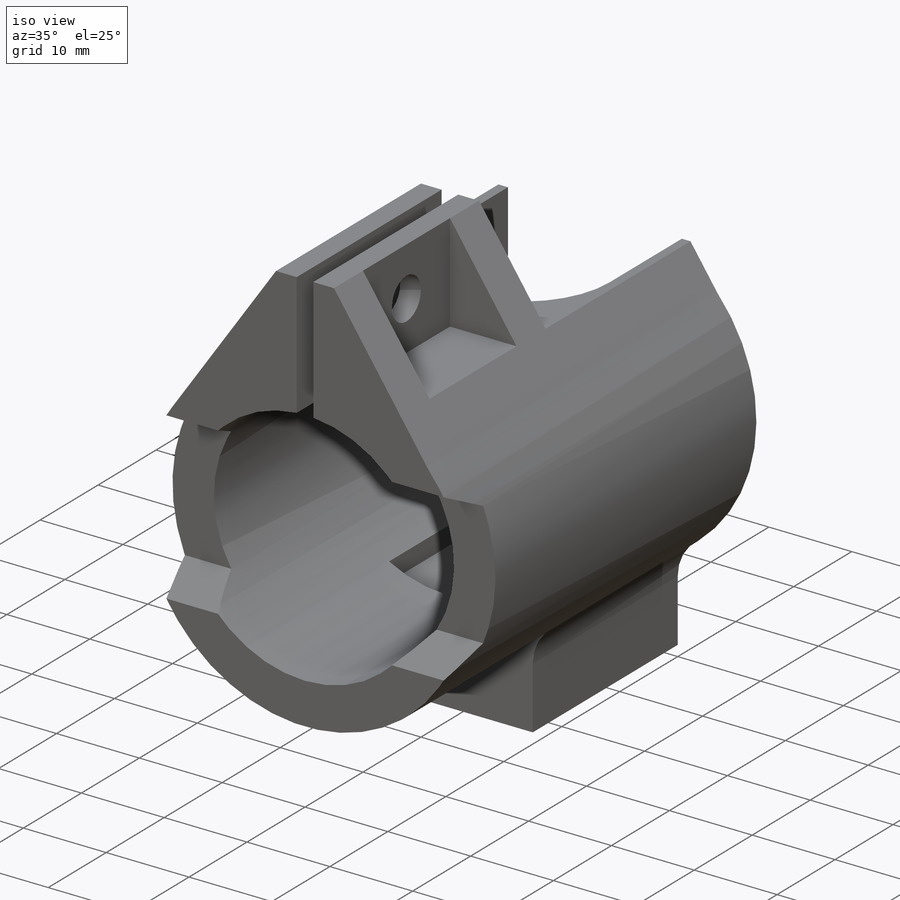
[diagram: iso view]
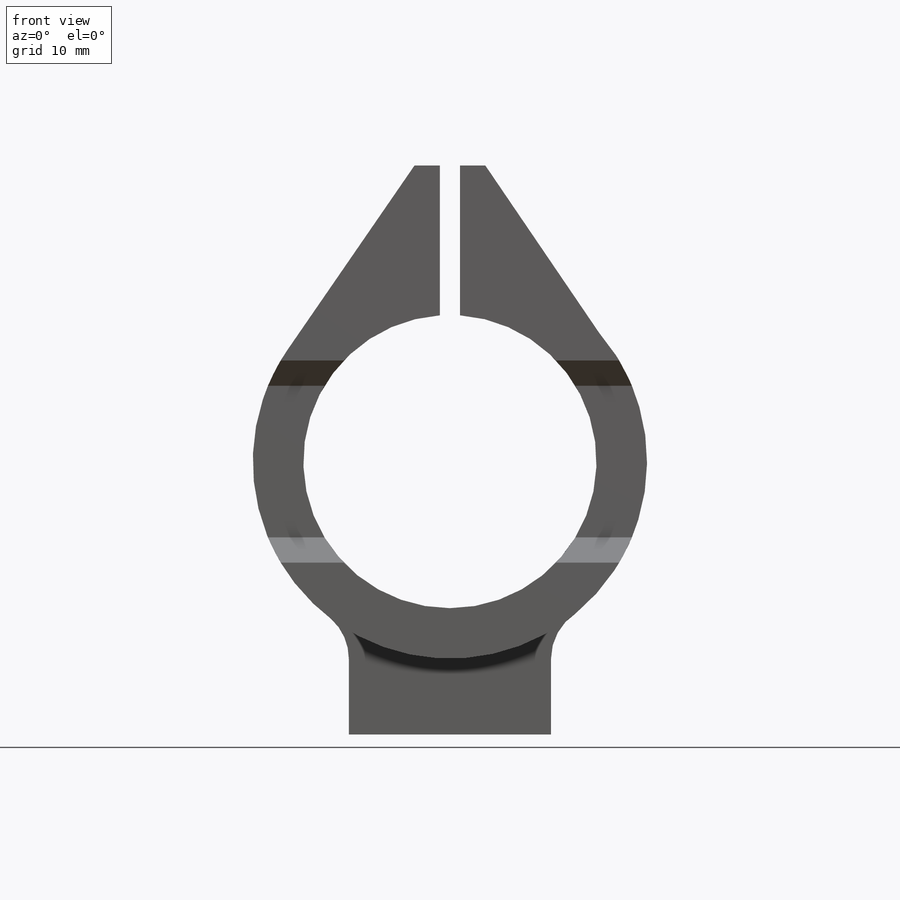
[diagram: front view]
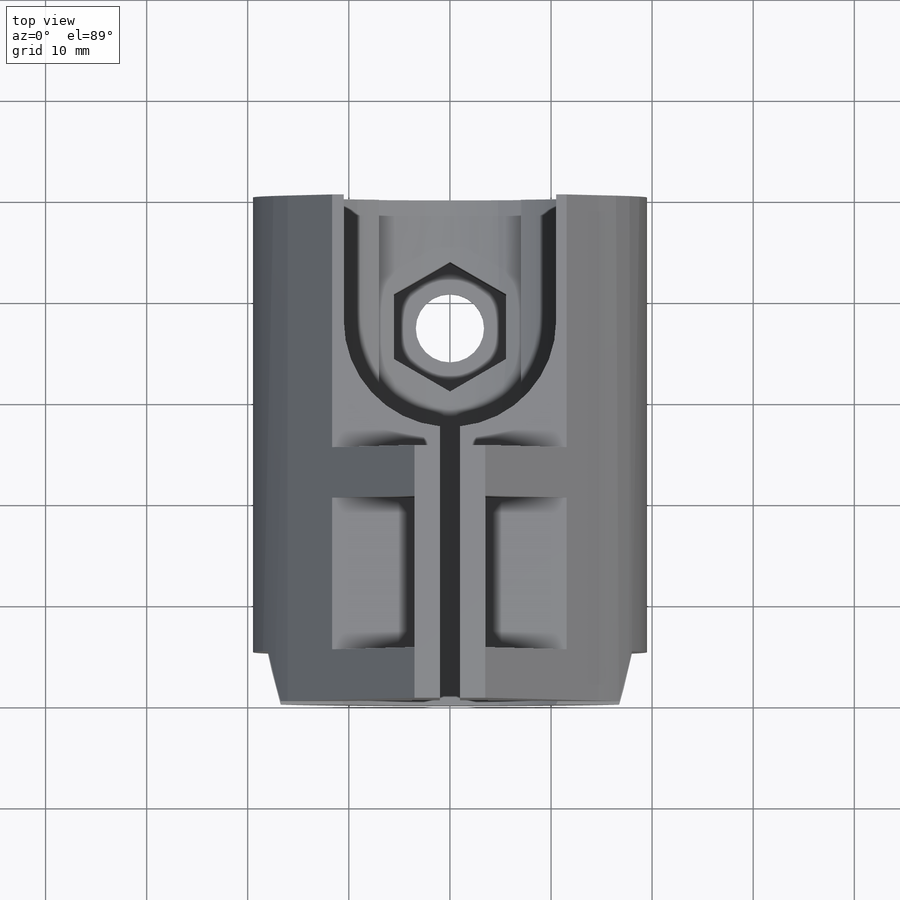
[diagram: top view]
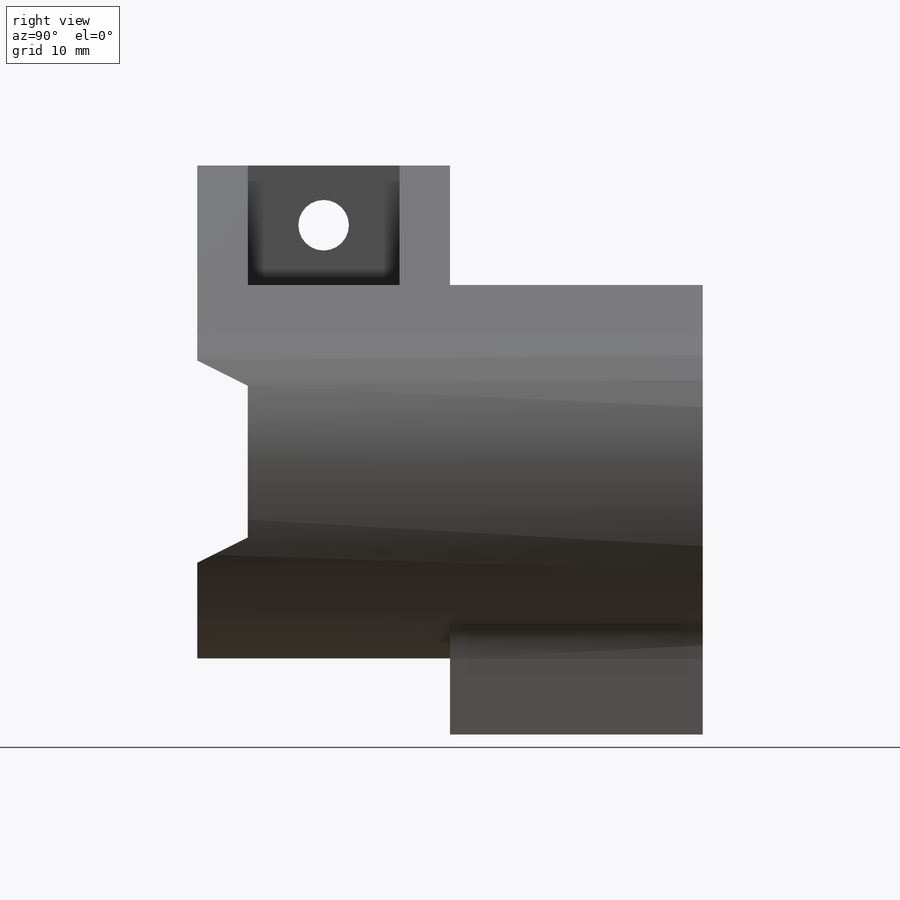
[diagram: right view]
SOLIDWORKS PART (.sldprt)
format: sldprt  version: not decoded by parser v0  size: 419,840 bytes
history: native  units: mm
features: sketch x11, cut_extrude x9, plane x4, extrude x2, material x1, mirror x1 (+12 scaffold rows collapsed)
feature tree (40):
  scaffold x12  (default folders/planes/origin — collapsed)
  material  "ABS"
  sketch  "Sketch1"  dims[c1.D1=29.0mm c1.D8=50.0mm c1.D9=50.0mm c2.D8=50.0mm c2.D2=10.0mm c2.D5=20.0mm c2.D6=8.0mm c3.D2=5.0mm c3.D3=2.0mm c3.D4=2.0mm c3.D5=5.0mm c3.D6=5.0mm c4.D3=1.0mm c4.D4=1.0mm c4.D5=2.5mm c4.D6=2.5mm c4.D7=15.0mm]
  extrude  "Boss-Extrude1"  Depth=50mm
  plane  "Plane1"  Offset=5mm
  plane  "Plane2"  Offset=3.5mm
  sketch  "Sketch4"  dims[c1.D3=25.0mm c1.D1=3.0mm c1.D2=5.0mm c2.D3=5.0mm c2.D4=15.0mm c2.D5=15.0mm]
  cut_extrude  "Cut-Extrude3"  [1 undecoded]
  mirror  "Mirror1"
  sketch  "Sketch5"  dims[D1=~2.495447mm]
  cut_extrude  "Cut-Extrude4"  [1 undecoded]
  plane  "Plane4"  Offset=14.5mm
  sketch  "Sketch8"  dims[D2=~10.531312mm D1=12.5mm]
  sketch  "Sketch9"  dims[D1=5.0mm]
  cut_extrude  "Cut-Extrude8"  [1 undecoded]
  cut_extrude  "Cut-Extrude9"  [1 undecoded]
  plane  "Plane5"
  sketch  "Sketch10"  dims[D1=2.0mm D2=7.0mm D3=7.0mm]
  cut_extrude  "Cut-Extrude10"  Depth=13mm
  sketch  "Sketch11"  dims[D1=10.0mm D2=10.0mm D3=5.0mm D4=7.5mm D5=7.5mm]
  cut_extrude  "Cut-Extrude11"  [1 undecoded]
  sketch  "Sketch13"  dims[D1=~6.197873mm]
  cut_extrude  "Cut-Extrude15"  [1 undecoded]
  sketch  "Sketch14"  dims[D1=~2.57969mm]
  extrude  "Boss-Extrude2"  Depth=2.5mm
  sketch  "Sketch15"
  cut_extrude  "Cut-Extrude17"  Depth=25mm
  sketch  "Sketch16"
  cut_extrude  "Cut-Extrude18"  Depth=0.5mm
decode coverage: 14 of 23 modeling features carry decoded parameters
note: ~ marks probable driven/reference dimensions
note: 6 parameter values undecoded
summary: no parameter record found for 6 features
note: suppression state not decoded; provenance and decode notes live in map.json
